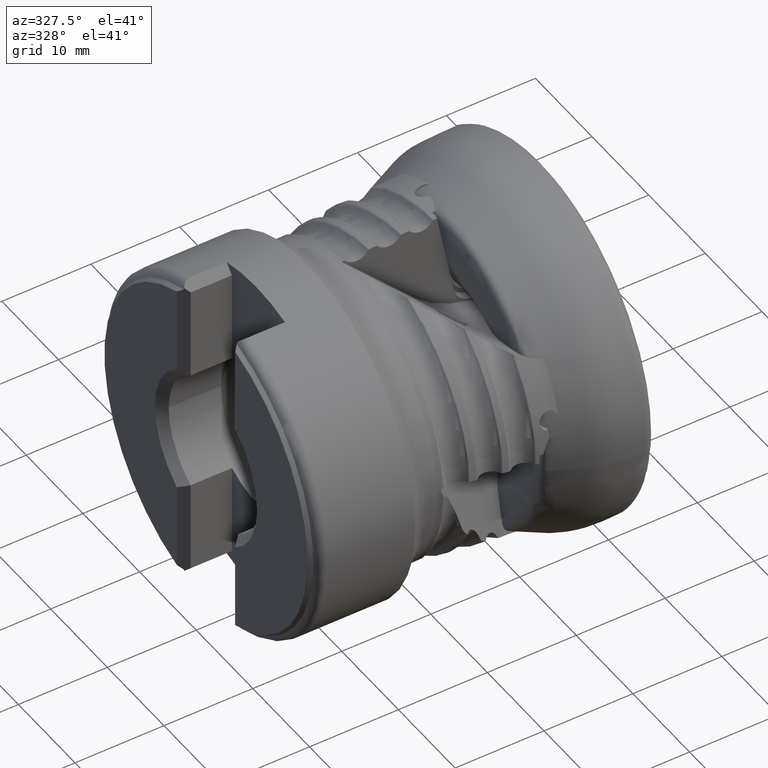
[diagram: clean part render]
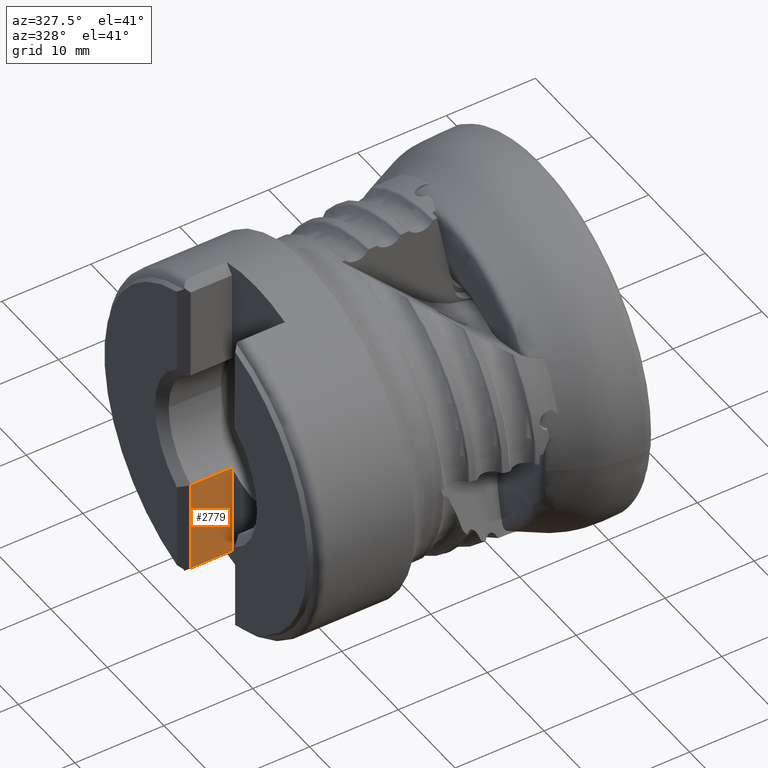
[diagram: same view with one face highlighted and labeled with its STEP entity id]
A machine part, auxiliary view. The second image highlights one B-rep face of the part: STEP entity #2779.
In plain terms, the highlighted planar face has unit normal (0, 1, 0).
Its self-contained STEP definition (entity closure, byte-faithful):
#8 = CARTESIAN_POINT ( 'NONE',  ( -37.95525917703945900, 4.199999999999996600, -6.896783670668520800 ) ) ;
#118 = LINE ( 'NONE', #8097, #1704 ) ;
#467 = CARTESIAN_POINT ( 'NONE',  ( -33.30525917703945300, 4.199999999999995700, -17.32582944009227400 ) ) ;
#600 = EDGE_LOOP ( 'NONE', ( #9651, #6807, #6852, #2322 ) ) ;
#642 = CARTESIAN_POINT ( 'NONE',  ( -33.30525917703945300, 4.199999999999995700, -6.896783670668521700 ) ) ;
#1027 = EDGE_CURVE ( 'NONE', #9380, #2945, #7840, .T. ) ;
#1111 = EDGE_CURVE ( 'NONE', #4255, #7862, #118, .T. ) ;
#1527 = AXIS2_PLACEMENT_3D ( 'NONE', #1909, #8187, #3488 ) ;
#1564 = FACE_OUTER_BOUND ( 'NONE', #600, .T. ) ;
#1573 = VECTOR ( 'NONE', #1784, 1000.000000000000000 ) ;
#1585 = EDGE_CURVE ( 'NONE', #9380, #4255, #9710, .T. ) ;
#1704 = VECTOR ( 'NONE', #3398, 1000.000000000000000 ) ;
#1784 = DIRECTION ( 'NONE',  ( 1.000000000000000000, -1.865294060190114700E-016, -5.257057093906768100E-017 ) ) ;
#1909 = CARTESIAN_POINT ( 'NONE',  ( -37.95525917703945900, 4.199999999999996600, -35.00000000000000000 ) ) ;
#1982 = CARTESIAN_POINT ( 'NONE',  ( 0.3947408229605455200, 4.199999999999989500, -6.896783670668525300 ) ) ;
#2322 = ORIENTED_EDGE ( 'NONE', *, *, #3741, .F. ) ;
#2779 = ADVANCED_FACE ( 'NONE', ( #1564 ), #7384, .F. ) ;
#2945 = VERTEX_POINT ( 'NONE', #8 ) ;
#3348 = CARTESIAN_POINT ( 'NONE',  ( -37.95525917703945900, 4.199999999999996600, -35.00000000000000000 ) ) ;
#3398 = DIRECTION ( 'NONE',  ( -0.0000000000000000000, -0.0000000000000000000, 1.000000000000000000 ) ) ;
#3488 = DIRECTION ( 'NONE',  ( -1.000000000000000000, 1.865294060190114700E-016, 0.0000000000000000000 ) ) ;
#3741 = EDGE_CURVE ( 'NONE', #2945, #7862, #7303, .T. ) ;
#4255 = VERTEX_POINT ( 'NONE', #467 ) ;
#5507 = VECTOR ( 'NONE', #9640, 1000.000000000000000 ) ;
#5695 = CARTESIAN_POINT ( 'NONE',  ( -33.30525917703945300, 4.199999999999995700, -17.32582944009227400 ) ) ;
#6657 = DIRECTION ( 'NONE',  ( 1.000000000000000000, -1.428069201245745700E-032, -0.0000000000000000000 ) ) ;
#6807 = ORIENTED_EDGE ( 'NONE', *, *, #1585, .T. ) ;
#6852 = ORIENTED_EDGE ( 'NONE', *, *, #1111, .T. ) ;
#7303 = LINE ( 'NONE', #1982, #9451 ) ;
#7384 = PLANE ( 'NONE',  #1527 ) ;
#7533 = CARTESIAN_POINT ( 'NONE',  ( -37.95525917703945900, 4.199999999999995700, -17.32582944009227400 ) ) ;
#7840 = LINE ( 'NONE', #3348, #5507 ) ;
#7862 = VERTEX_POINT ( 'NONE', #642 ) ;
#8097 = CARTESIAN_POINT ( 'NONE',  ( -33.30525917703945300, 4.199999999999995700, -35.00000000000000000 ) ) ;
#8187 = DIRECTION ( 'NONE',  ( 1.865294060190114700E-016, 1.000000000000000000, 0.0000000000000000000 ) ) ;
#9380 = VERTEX_POINT ( 'NONE', #7533 ) ;
#9451 = VECTOR ( 'NONE', #6657, 1000.000000000000000 ) ;
#9640 = DIRECTION ( 'NONE',  ( -0.0000000000000000000, -0.0000000000000000000, 1.000000000000000000 ) ) ;
#9651 = ORIENTED_EDGE ( 'NONE', *, *, #1027, .F. ) ;
#9710 = LINE ( 'NONE', #5695, #1573 ) ;